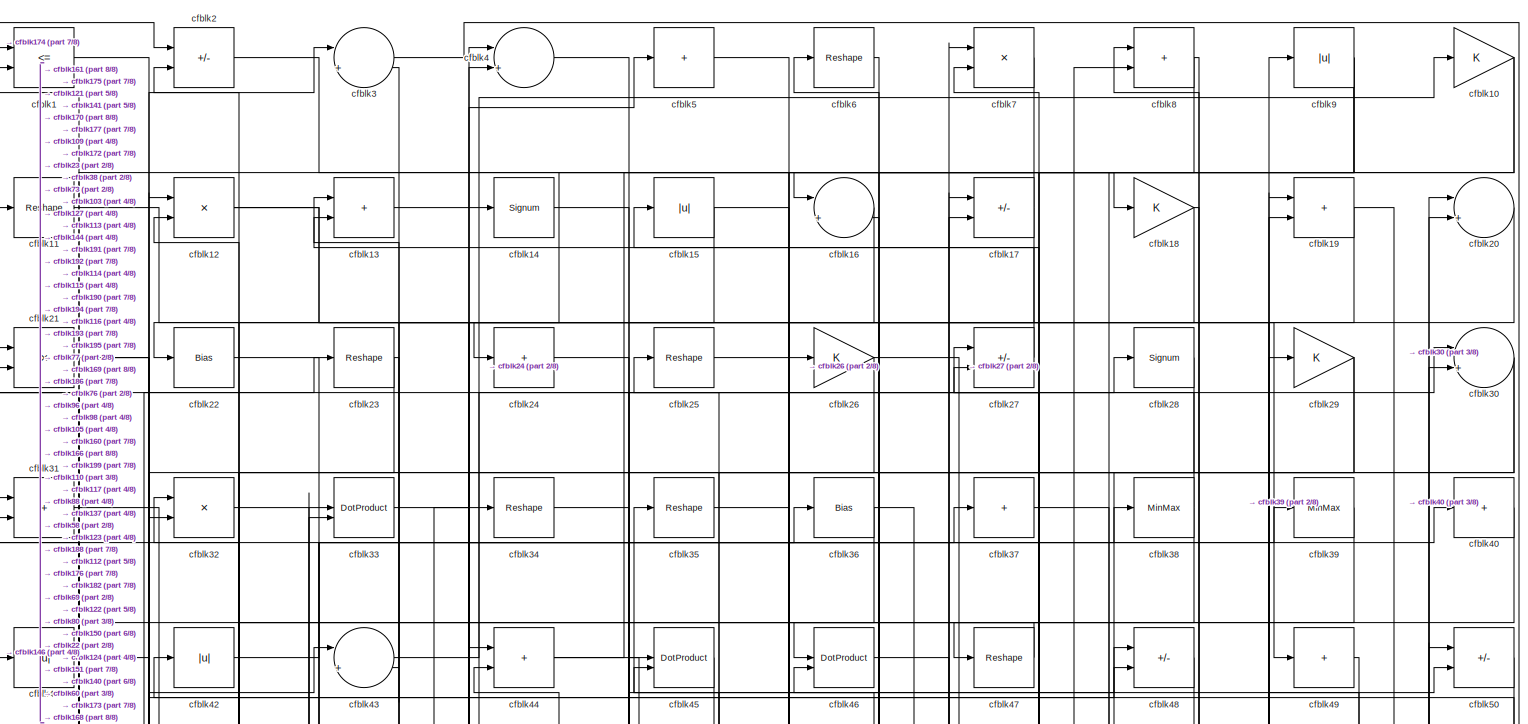
[diagram: root canvas - part 1/8, full width, top band]
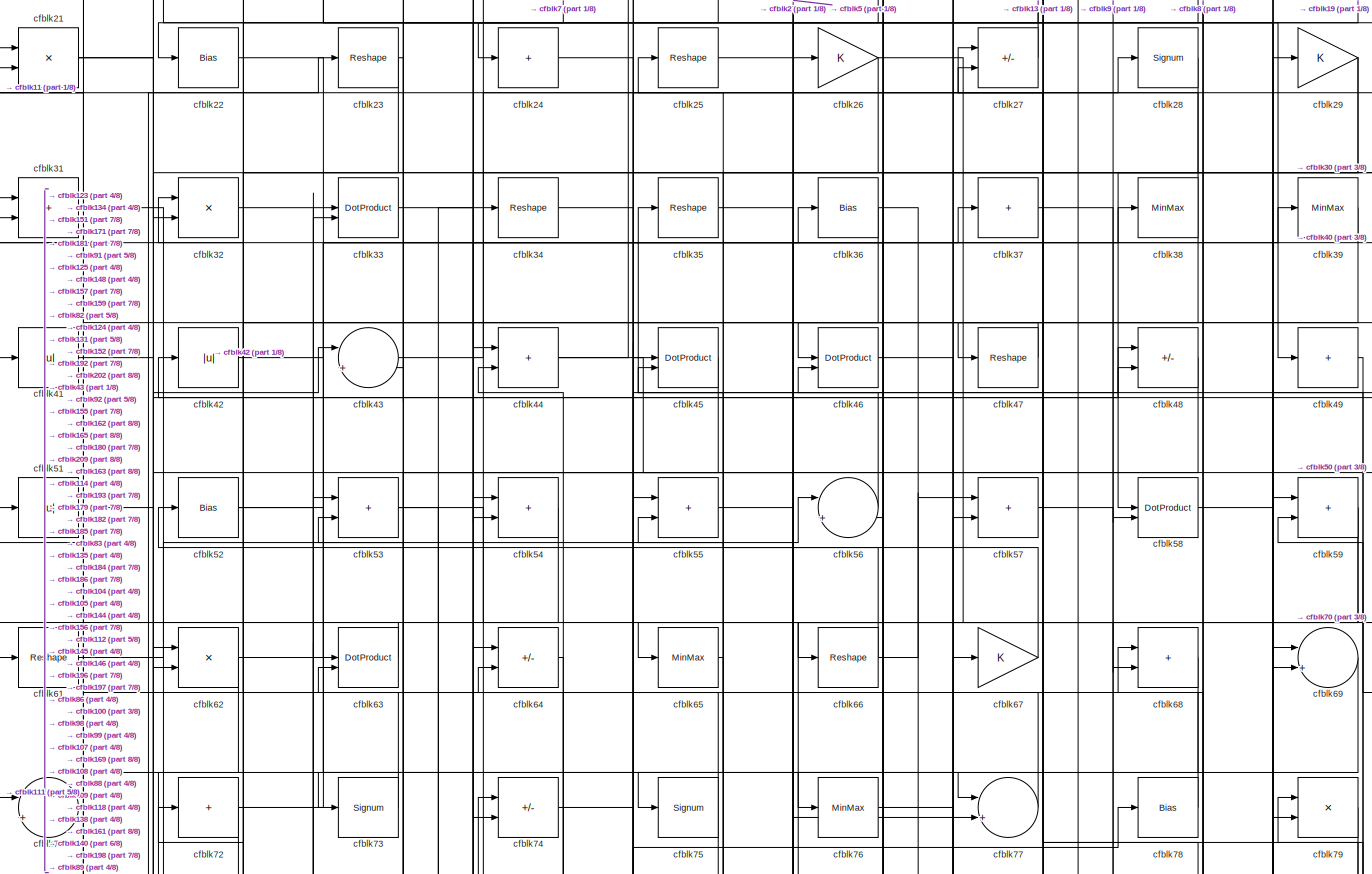
[diagram: root canvas - part 2/8, full width, top band]
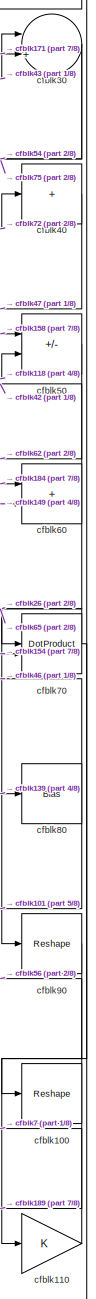
[diagram: root canvas - part 3/8, top right region]
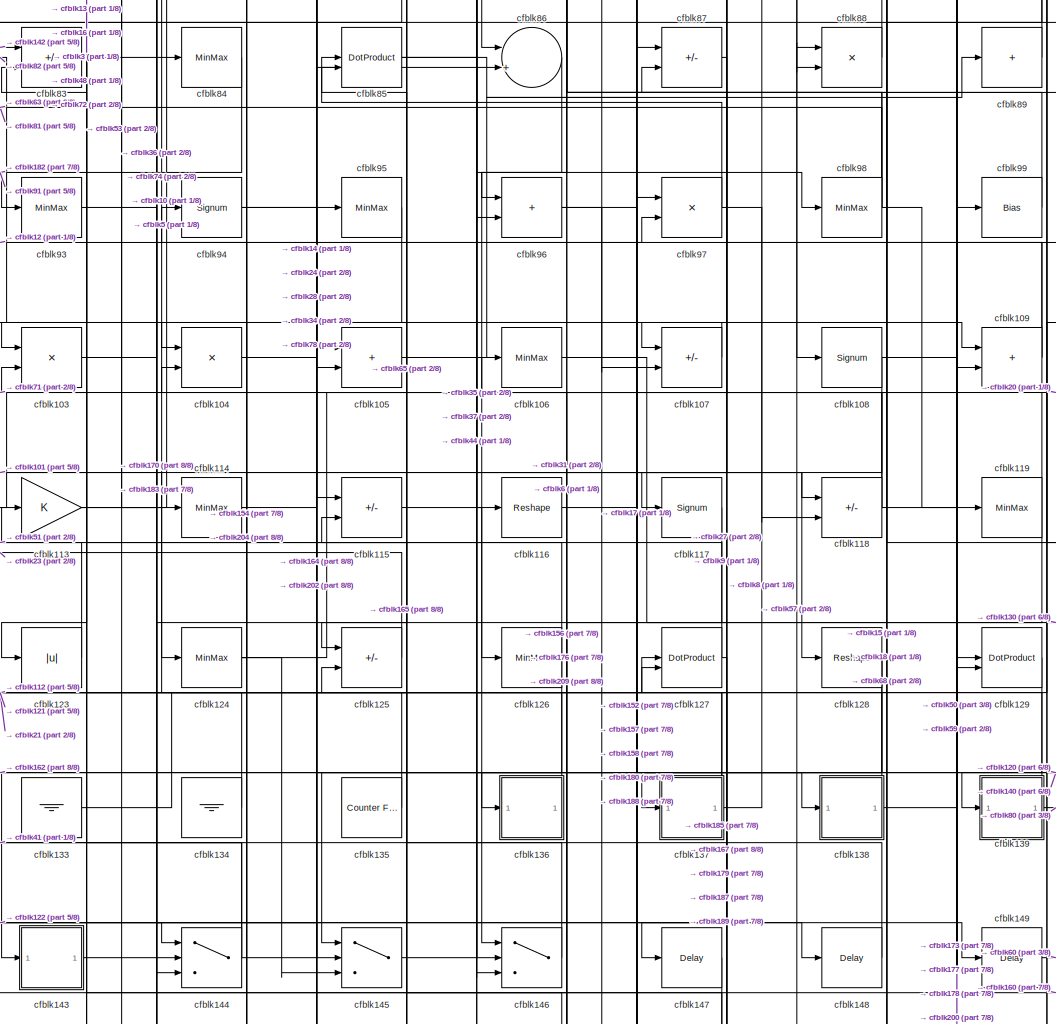
[diagram: root canvas - part 4/8, central region]
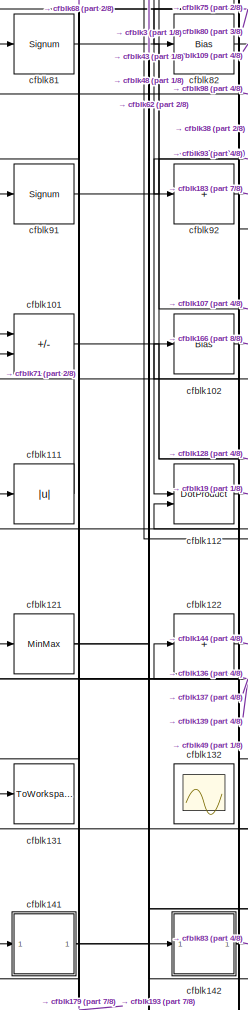
[diagram: root canvas - part 5/8, middle left region]
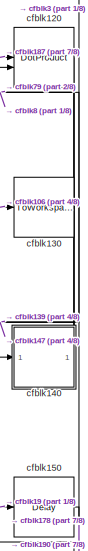
[diagram: root canvas - part 6/8, middle right region]
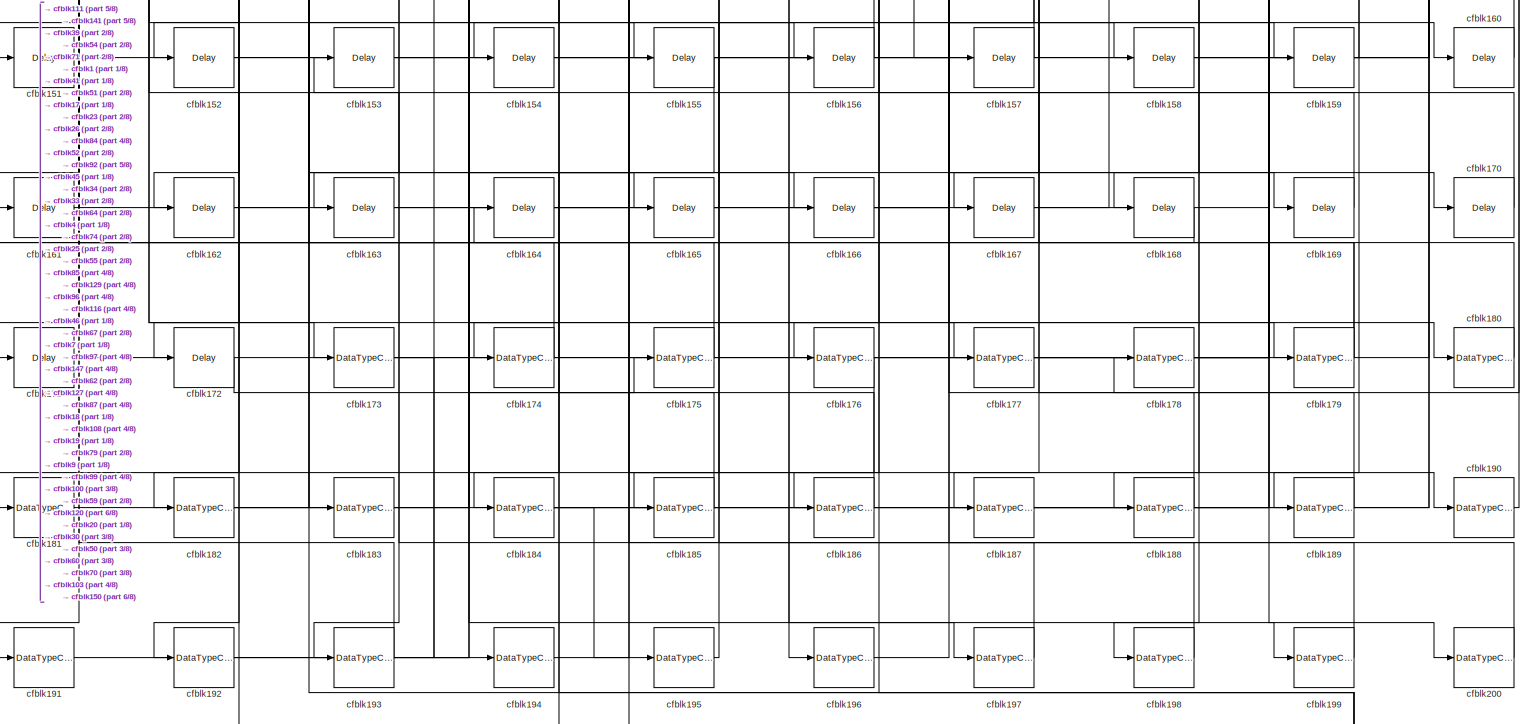
[diagram: root canvas - part 7/8, full width, bottom band]
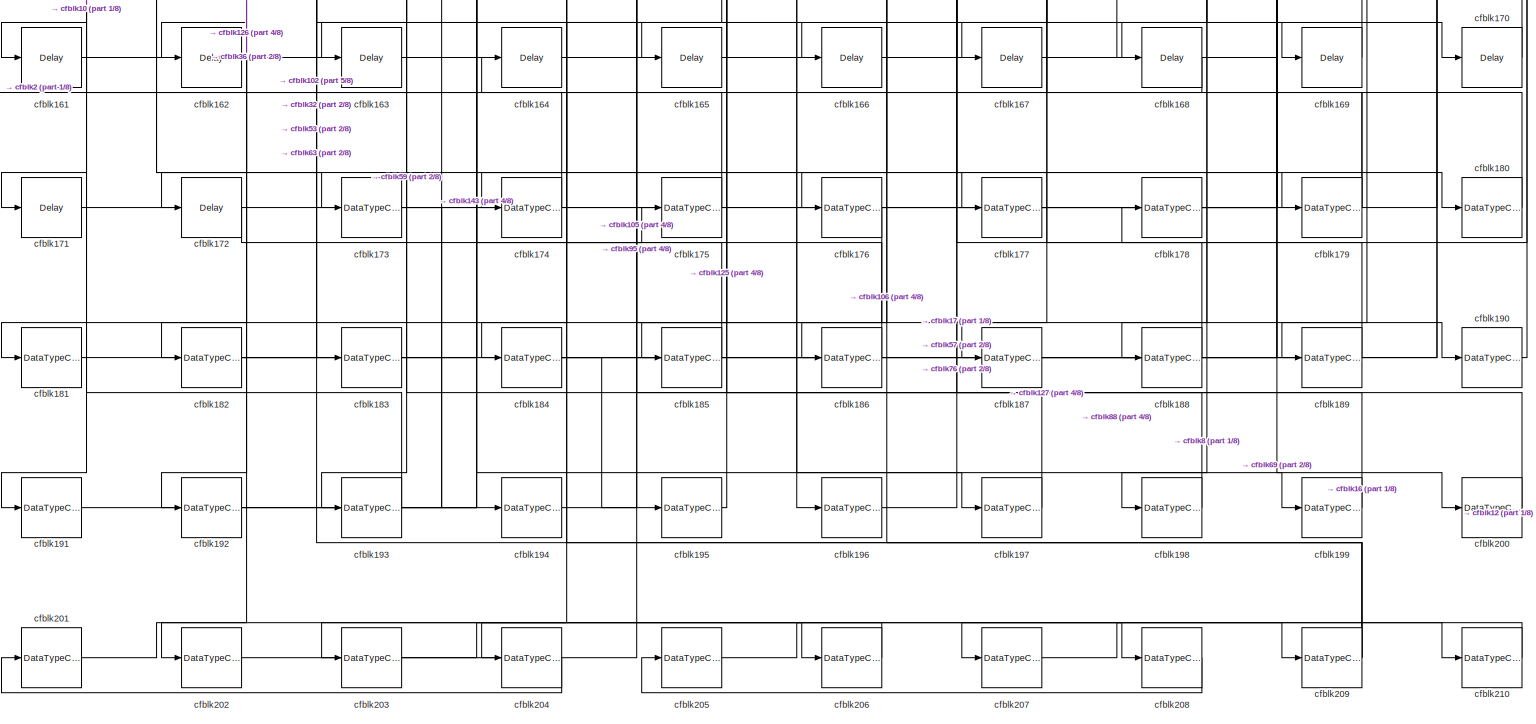
[diagram: root canvas - part 8/8, full width, bottom band]
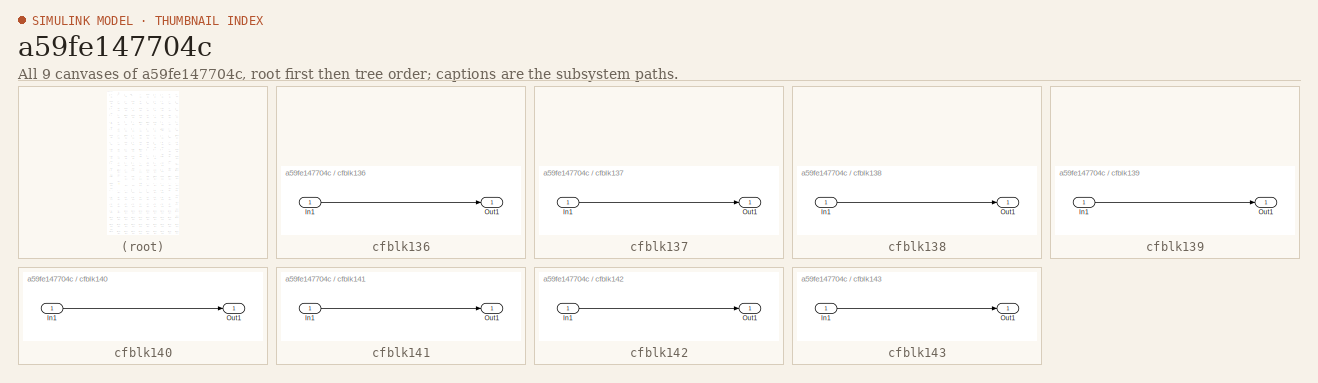
[diagram: thumbnail index - all 9 canvases of the model, root first then tree order]
MODEL slx_a59fe147704c
KIND model
CONFIG AbsTol = auto
CONFIG EnableMultiTasking = off
CONFIG FixedStep = auto
CONFIG MaxStep = auto
CONFIG MinStep = auto
CONFIG RelTol = 1e-3
CONFIG SampleTimeConstraint = Unconstrained
CONFIG SolverName = VariableStepAuto
CONFIG StartTime = 0.0
CONFIG StopTime = 10.0
BLOCK [RelationalOperator] cfblk1
  InputSameDT = off
  Operator = <=
  OutDataTypeStr = boolean
BLOCK [Gain] cfblk10
BLOCK [Reshape] cfblk100
BLOCK [Sum] cfblk101
  IconShape = rectangular
  Inputs = +-
BLOCK [Bias] cfblk102
  Bias = 0.0
  SaturateOnIntegerOverflow = off
BLOCK [Product] cfblk103
  Inputs = */
  RndMeth = Zero
  SaturateOnIntegerOverflow = on
BLOCK [Product] cfblk104
  Inputs = */
  RndMeth = Zero
  SaturateOnIntegerOverflow = on
BLOCK [Sum] cfblk105
  IconShape = rectangular
BLOCK [MinMax] cfblk106
BLOCK [Sum] cfblk107
  IconShape = rectangular
  Inputs = +-
BLOCK [Signum] cfblk108
BLOCK [Sum] cfblk109
  IconShape = rectangular
BLOCK [Reshape] cfblk11
BLOCK [Gain] cfblk110
BLOCK [Abs] cfblk111
  SaturateOnIntegerOverflow = off
BLOCK [DotProduct] cfblk112
  OutDataTypeStr = Inherit: Inherit via internal rule
BLOCK [Gain] cfblk113
BLOCK [MinMax] cfblk114
BLOCK [Sum] cfblk115
  IconShape = rectangular
  Inputs = +-
BLOCK [Reshape] cfblk116
BLOCK [Signum] cfblk117
BLOCK [Sum] cfblk118
  IconShape = rectangular
  Inputs = +-
BLOCK [MinMax] cfblk119
BLOCK [Product] cfblk12
  Inputs = */
  RndMeth = Zero
  SaturateOnIntegerOverflow = on
BLOCK [DotProduct] cfblk120
  OutDataTypeStr = Inherit: Inherit via internal rule
BLOCK [MinMax] cfblk121
BLOCK [Sum] cfblk122
  IconShape = rectangular
  Inputs = +
BLOCK [Abs] cfblk123
  SaturateOnIntegerOverflow = off
BLOCK [MinMax] cfblk124
BLOCK [Sum] cfblk125
  IconShape = rectangular
  Inputs = +-
BLOCK [MinMax] cfblk126
BLOCK [DotProduct] cfblk127
  OutDataTypeStr = Inherit: Inherit via internal rule
BLOCK [Reshape] cfblk128
BLOCK [DotProduct] cfblk129
  OutDataTypeStr = Inherit: Inherit via internal rule
BLOCK [Sum] cfblk13
  IconShape = rectangular
BLOCK [ToWorkspace] cfblk130
  MaxDataPoints = inf
  SampleTime = -1
  SaveFormat = Timeseries
  VariableName = simout
BLOCK [ToWorkspace] cfblk131
  MaxDataPoints = inf
  SampleTime = -1
  SaveFormat = Timeseries
  VariableName = simout
BLOCK [Scope] cfblk132
  Floating = on
  NumInputPorts = 1
  ScopeSpecificationString = Simulink.scopes.TimeScopeBlockCfg('CurrentConfiguration', extmgr.ConfigurationSet(extmgr.Configuration('Core','General UI',true,'FigureColor',[0.156862745098039 0.156862745098039 0.156862745098039]),extmgr.Configuration('Core','Source UI',true),extmgr.Configuration('Sources','WiredSimulink',true,'DataLoggingVariableName','ScopeData1','DataLoggingSaveFormat','StructureWithTime','DataLoggingLimitDat...<+2713ch>
BLOCK [Ground] cfblk133
BLOCK [Ground] cfblk134
BLOCK [Reference] cfblk135  REF=hdlsllib/Sources/Counter
Free-Running
  SourceBlock = hdlsllib/Sources/Counter\nFree-Running
  SourceType = Counter Free-Running
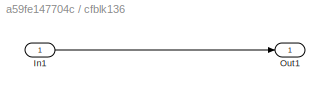
BLOCK [SubSystem] cfblk136
  LibrarySourceBlock = hdlsllib/Ports &\nSubsystems/Subsystem
BLOCK [Inport] cfblk136/In1
BLOCK [Outport] cfblk136/Out1
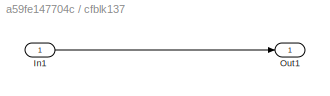
BLOCK [SubSystem] cfblk137
  LibrarySourceBlock = hdlsllib/Ports &\nSubsystems/Subsystem
BLOCK [Inport] cfblk137/In1
BLOCK [Outport] cfblk137/Out1
BLOCK [SubSystem] cfblk138
  LibrarySourceBlock = hdlsllib/Ports &\nSubsystems/Subsystem
BLOCK [Inport] cfblk138/In1
BLOCK [Outport] cfblk138/Out1
BLOCK [SubSystem] cfblk139
  LibrarySourceBlock = hdlsllib/Ports &\nSubsystems/Subsystem
BLOCK [Inport] cfblk139/In1
BLOCK [Outport] cfblk139/Out1
BLOCK [Signum] cfblk14
BLOCK [SubSystem] cfblk140
  LibrarySourceBlock = hdlsllib/Ports &\nSubsystems/Subsystem
BLOCK [Inport] cfblk140/In1
BLOCK [Outport] cfblk140/Out1
BLOCK [SubSystem] cfblk141
  LibrarySourceBlock = hdlsllib/Ports &\nSubsystems/Subsystem
BLOCK [Inport] cfblk141/In1
BLOCK [Outport] cfblk141/Out1
BLOCK [SubSystem] cfblk142
  LibrarySourceBlock = hdlsllib/Ports &\nSubsystems/Subsystem
BLOCK [Inport] cfblk142/In1
BLOCK [Outport] cfblk142/Out1
BLOCK [SubSystem] cfblk143
  LibrarySourceBlock = hdlsllib/Ports &\nSubsystems/Subsystem
BLOCK [Inport] cfblk143/In1
BLOCK [Outport] cfblk143/Out1
BLOCK [Switch] cfblk144
  InputSameDT = off
  SaturateOnIntegerOverflow = off
BLOCK [Switch] cfblk145
  InputSameDT = off
  SaturateOnIntegerOverflow = off
BLOCK [Switch] cfblk146
  InputSameDT = off
  SaturateOnIntegerOverflow = off
BLOCK [Delay] cfblk147
  InputPortMap = u0
  SampleTime = 1
BLOCK [Delay] cfblk148
  InputPortMap = u0
  SampleTime = 1
BLOCK [Delay] cfblk149
  InputPortMap = u0
  SampleTime = 1
BLOCK [Abs] cfblk15
  SaturateOnIntegerOverflow = off
BLOCK [Delay] cfblk150
  InputPortMap = u0
  SampleTime = 1
BLOCK [Delay] cfblk151
  InputPortMap = u0
  SampleTime = 1
BLOCK [Delay] cfblk152
  InputPortMap = u0
  SampleTime = 1
BLOCK [Delay] cfblk153
  InputPortMap = u0
  SampleTime = 1
BLOCK [Delay] cfblk154
  InputPortMap = u0
  SampleTime = 1
BLOCK [Delay] cfblk155
  InputPortMap = u0
  SampleTime = 1
BLOCK [Delay] cfblk156
  InputPortMap = u0
  SampleTime = 1
BLOCK [Delay] cfblk157
  InputPortMap = u0
  SampleTime = 1
BLOCK [Delay] cfblk158
  InputPortMap = u0
  SampleTime = 1
BLOCK [Delay] cfblk159
  InputPortMap = u0
  SampleTime = 1
BLOCK [Sum] cfblk16
  Inputs = |++
BLOCK [Delay] cfblk160
  InputPortMap = u0
  SampleTime = 1
BLOCK [Delay] cfblk161
  InputPortMap = u0
  SampleTime = 1
BLOCK [Delay] cfblk162
  InputPortMap = u0
  SampleTime = 1
BLOCK [Delay] cfblk163
  InputPortMap = u0
  SampleTime = 1
BLOCK [Delay] cfblk164
  InputPortMap = u0
  SampleTime = 1
BLOCK [Delay] cfblk165
  InputPortMap = u0
  SampleTime = 1
BLOCK [Delay] cfblk166
  InputPortMap = u0
  SampleTime = 1
BLOCK [Delay] cfblk167
  InputPortMap = u0
  SampleTime = 1
BLOCK [Delay] cfblk168
  InputPortMap = u0
  SampleTime = 1
BLOCK [Delay] cfblk169
  InputPortMap = u0
  SampleTime = 1
BLOCK [Sum] cfblk17
  IconShape = rectangular
  Inputs = +-
BLOCK [Delay] cfblk170
  InputPortMap = u0
  SampleTime = 1
BLOCK [Delay] cfblk171
  InputPortMap = u0
  SampleTime = 1
BLOCK [Delay] cfblk172
  InputPortMap = u0
  SampleTime = 1
BLOCK [DataTypeConversion] cfblk173
  RndMeth = Floor
  SaturateOnIntegerOverflow = off
BLOCK [DataTypeConversion] cfblk174
  OutDataTypeStr = uint8
  RndMeth = Floor
  SaturateOnIntegerOverflow = off
BLOCK [DataTypeConversion] cfblk175
  OutDataTypeStr = uint8
  RndMeth = Floor
  SaturateOnIntegerOverflow = off
BLOCK [DataTypeConversion] cfblk176
  RndMeth = Floor
  SaturateOnIntegerOverflow = off
BLOCK [DataTypeConversion] cfblk177
  OutDataTypeStr = uint8
  RndMeth = Floor
  SaturateOnIntegerOverflow = off
BLOCK [DataTypeConversion] cfblk178
  OutDataTypeStr = uint8
  RndMeth = Floor
  SaturateOnIntegerOverflow = off
BLOCK [DataTypeConversion] cfblk179
  RndMeth = Floor
  SaturateOnIntegerOverflow = off
BLOCK [Gain] cfblk18
BLOCK [DataTypeConversion] cfblk180
  OutDataTypeStr = uint8
  RndMeth = Floor
  SaturateOnIntegerOverflow = off
BLOCK [DataTypeConversion] cfblk181
  OutDataTypeStr = uint8
  RndMeth = Floor
  SaturateOnIntegerOverflow = off
BLOCK [DataTypeConversion] cfblk182
  RndMeth = Floor
  SaturateOnIntegerOverflow = off
BLOCK [DataTypeConversion] cfblk183
  OutDataTypeStr = uint8
  RndMeth = Floor
  SaturateOnIntegerOverflow = off
BLOCK [DataTypeConversion] cfblk184
  RndMeth = Floor
  SaturateOnIntegerOverflow = off
BLOCK [DataTypeConversion] cfblk185
  OutDataTypeStr = uint8
  RndMeth = Floor
  SaturateOnIntegerOverflow = off
BLOCK [DataTypeConversion] cfblk186
  OutDataTypeStr = uint8
  RndMeth = Floor
  SaturateOnIntegerOverflow = off
BLOCK [DataTypeConversion] cfblk187
  OutDataTypeStr = uint8
  RndMeth = Floor
  SaturateOnIntegerOverflow = off
BLOCK [DataTypeConversion] cfblk188
  OutDataTypeStr = uint8
  RndMeth = Floor
  SaturateOnIntegerOverflow = off
BLOCK [DataTypeConversion] cfblk189
  OutDataTypeStr = uint8
  RndMeth = Floor
  SaturateOnIntegerOverflow = off
BLOCK [Sum] cfblk19
  IconShape = rectangular
BLOCK [DataTypeConversion] cfblk190
  OutDataTypeStr = uint8
  RndMeth = Floor
  SaturateOnIntegerOverflow = off
BLOCK [DataTypeConversion] cfblk191
  OutDataTypeStr = uint8
  RndMeth = Floor
  SaturateOnIntegerOverflow = off
BLOCK [DataTypeConversion] cfblk192
  OutDataTypeStr = uint8
  RndMeth = Floor
  SaturateOnIntegerOverflow = off
BLOCK [DataTypeConversion] cfblk193
  RndMeth = Floor
  SaturateOnIntegerOverflow = off
BLOCK [DataTypeConversion] cfblk194
  OutDataTypeStr = uint8
  RndMeth = Floor
  SaturateOnIntegerOverflow = off
BLOCK [DataTypeConversion] cfblk195
  OutDataTypeStr = uint8
  RndMeth = Floor
  SaturateOnIntegerOverflow = off
BLOCK [DataTypeConversion] cfblk196
  OutDataTypeStr = uint8
  RndMeth = Floor
  SaturateOnIntegerOverflow = off
BLOCK [DataTypeConversion] cfblk197
  OutDataTypeStr = uint8
  RndMeth = Floor
  SaturateOnIntegerOverflow = off
BLOCK [DataTypeConversion] cfblk198
  OutDataTypeStr = uint8
  RndMeth = Floor
  SaturateOnIntegerOverflow = off
BLOCK [DataTypeConversion] cfblk199
  OutDataTypeStr = uint8
  RndMeth = Floor
  SaturateOnIntegerOverflow = off
BLOCK [Sum] cfblk2
  IconShape = rectangular
  Inputs = +-
BLOCK [Sum] cfblk20
  Inputs = |++
BLOCK [DataTypeConversion] cfblk200
  OutDataTypeStr = uint8
  RndMeth = Floor
  SaturateOnIntegerOverflow = off
BLOCK [DataTypeConversion] cfblk201
  RndMeth = Floor
  SaturateOnIntegerOverflow = off
BLOCK [DataTypeConversion] cfblk202
  OutDataTypeStr = uint8
  RndMeth = Floor
  SaturateOnIntegerOverflow = off
BLOCK [DataTypeConversion] cfblk203
  RndMeth = Floor
  SaturateOnIntegerOverflow = off
BLOCK [DataTypeConversion] cfblk204
  OutDataTypeStr = uint8
  RndMeth = Floor
  SaturateOnIntegerOverflow = off
BLOCK [DataTypeConversion] cfblk205
  RndMeth = Floor
  SaturateOnIntegerOverflow = off
BLOCK [DataTypeConversion] cfblk206
  OutDataTypeStr = uint8
  RndMeth = Floor
  SaturateOnIntegerOverflow = off
BLOCK [DataTypeConversion] cfblk207
  RndMeth = Floor
  SaturateOnIntegerOverflow = off
BLOCK [DataTypeConversion] cfblk208
  OutDataTypeStr = uint8
  RndMeth = Floor
  SaturateOnIntegerOverflow = off
BLOCK [DataTypeConversion] cfblk209
  RndMeth = Floor
  SaturateOnIntegerOverflow = off
BLOCK [Product] cfblk21
  Inputs = */
  RndMeth = Zero
  SaturateOnIntegerOverflow = on
BLOCK [DataTypeConversion] cfblk210
  OutDataTypeStr = uint8
  RndMeth = Floor
  SaturateOnIntegerOverflow = off
BLOCK [Bias] cfblk22
  Bias = 0.0
  SaturateOnIntegerOverflow = off
BLOCK [Reshape] cfblk23
BLOCK [Sum] cfblk24
  IconShape = rectangular
  Inputs = +
BLOCK [Reshape] cfblk25
BLOCK [Gain] cfblk26
BLOCK [Sum] cfblk27
  IconShape = rectangular
  Inputs = +-
BLOCK [Signum] cfblk28
BLOCK [Gain] cfblk29
BLOCK [Sum] cfblk3
  Inputs = |++
BLOCK [Sum] cfblk30
  Inputs = |++
BLOCK [Sum] cfblk31
  IconShape = rectangular
BLOCK [Product] cfblk32
  Inputs = */
  RndMeth = Zero
  SaturateOnIntegerOverflow = on
BLOCK [DotProduct] cfblk33
  OutDataTypeStr = Inherit: Inherit via internal rule
BLOCK [Reshape] cfblk34
BLOCK [Reshape] cfblk35
BLOCK [Bias] cfblk36
  Bias = 0.0
  SaturateOnIntegerOverflow = off
BLOCK [Sum] cfblk37
  IconShape = rectangular
  Inputs = +
BLOCK [MinMax] cfblk38
BLOCK [MinMax] cfblk39
BLOCK [Sum] cfblk4
  Inputs = |++
BLOCK [Sum] cfblk40
  IconShape = rectangular
  Inputs = +
BLOCK [Abs] cfblk41
  SaturateOnIntegerOverflow = off
BLOCK [Abs] cfblk42
  SaturateOnIntegerOverflow = off
BLOCK [Sum] cfblk43
  Inputs = |++
BLOCK [Sum] cfblk44
  IconShape = rectangular
BLOCK [DotProduct] cfblk45
  OutDataTypeStr = Inherit: Inherit via internal rule
BLOCK [DotProduct] cfblk46
  OutDataTypeStr = Inherit: Inherit via internal rule
BLOCK [Reshape] cfblk47
BLOCK [Sum] cfblk48
  IconShape = rectangular
  Inputs = +-
BLOCK [Sum] cfblk49
  IconShape = rectangular
  Inputs = +
BLOCK [Sum] cfblk5
  IconShape = rectangular
  Inputs = +
BLOCK [Sum] cfblk50
  IconShape = rectangular
  Inputs = +-
BLOCK [Abs] cfblk51
  SaturateOnIntegerOverflow = off
BLOCK [Bias] cfblk52
  Bias = 0.0
  SaturateOnIntegerOverflow = off
BLOCK [Sum] cfblk53
  IconShape = rectangular
BLOCK [Sum] cfblk54
  IconShape = rectangular
BLOCK [Sum] cfblk55
  IconShape = rectangular
BLOCK [Sum] cfblk56
  Inputs = |++
BLOCK [Sum] cfblk57
  IconShape = rectangular
BLOCK [DotProduct] cfblk58
  OutDataTypeStr = Inherit: Inherit via internal rule
BLOCK [Sum] cfblk59
  IconShape = rectangular
BLOCK [Reshape] cfblk6
BLOCK [Sum] cfblk60
  IconShape = rectangular
BLOCK [Reshape] cfblk61
BLOCK [Product] cfblk62
  Inputs = */
  RndMeth = Zero
  SaturateOnIntegerOverflow = on
BLOCK [DotProduct] cfblk63
  OutDataTypeStr = Inherit: Inherit via internal rule
BLOCK [Sum] cfblk64
  IconShape = rectangular
  Inputs = +-
BLOCK [MinMax] cfblk65
BLOCK [Reshape] cfblk66
BLOCK [Gain] cfblk67
BLOCK [Sum] cfblk68
  IconShape = rectangular
BLOCK [Sum] cfblk69
  Inputs = |++
BLOCK [Product] cfblk7
  Inputs = */
  RndMeth = Zero
  SaturateOnIntegerOverflow = on
BLOCK [DotProduct] cfblk70
  OutDataTypeStr = Inherit: Inherit via internal rule
BLOCK [Sum] cfblk71
  Inputs = |++
BLOCK [Sum] cfblk72
  IconShape = rectangular
  Inputs = +
BLOCK [Signum] cfblk73
BLOCK [Sum] cfblk74
  IconShape = rectangular
  Inputs = +-
BLOCK [Signum] cfblk75
BLOCK [MinMax] cfblk76
BLOCK [Sum] cfblk77
  Inputs = |++
BLOCK [Bias] cfblk78
  Bias = 0.0
  SaturateOnIntegerOverflow = off
BLOCK [Product] cfblk79
  Inputs = */
  RndMeth = Zero
  SaturateOnIntegerOverflow = on
BLOCK [Sum] cfblk8
  IconShape = rectangular
BLOCK [Bias] cfblk80
  Bias = 0.0
  SaturateOnIntegerOverflow = off
BLOCK [Signum] cfblk81
BLOCK [Bias] cfblk82
  Bias = 0.0
  SaturateOnIntegerOverflow = off
BLOCK [Sum] cfblk83
  IconShape = rectangular
  Inputs = +-
BLOCK [MinMax] cfblk84
BLOCK [DotProduct] cfblk85
  OutDataTypeStr = Inherit: Inherit via internal rule
BLOCK [Sum] cfblk86
  Inputs = |++
BLOCK [Sum] cfblk87
  IconShape = rectangular
  Inputs = +-
BLOCK [Product] cfblk88
  Inputs = */
  RndMeth = Zero
  SaturateOnIntegerOverflow = on
BLOCK [Sum] cfblk89
  IconShape = rectangular
  Inputs = +
BLOCK [Abs] cfblk9
  SaturateOnIntegerOverflow = off
BLOCK [Reshape] cfblk90
BLOCK [Signum] cfblk91
BLOCK [Sum] cfblk92
  IconShape = rectangular
  Inputs = +
BLOCK [MinMax] cfblk93
BLOCK [Signum] cfblk94
BLOCK [MinMax] cfblk95
BLOCK [Sum] cfblk96
  IconShape = rectangular
BLOCK [Product] cfblk97
  Inputs = */
  RndMeth = Zero
  SaturateOnIntegerOverflow = on
BLOCK [MinMax] cfblk98
BLOCK [Bias] cfblk99
  Bias = 0.0
  SaturateOnIntegerOverflow = off
NET cfblk100:1 -> cfblk189:1, cfblk56:2
LINE cfblk101:1 -> cfblk128:1
LINE cfblk102:1 -> cfblk166:1
LINE cfblk103:1 -> cfblk97:2
LINE cfblk104:1 -> cfblk78:1
LINE cfblk105:1 -> cfblk17:2
LINE cfblk106:1 -> cfblk130:1
LINE cfblk107:1 -> cfblk104:1
NET cfblk108:1 -> cfblk154:1, cfblk200:1
NET cfblk109:1 -> cfblk12:2, cfblk68:1
NET cfblk10:1 -> cfblk117:1, cfblk161:1
LINE cfblk110:1 -> cfblk7:2
LINE cfblk111:1 -> cfblk71:1
LINE cfblk112:1 -> cfblk19:1
NET cfblk113:1 -> cfblk10:1, cfblk5:1
NET cfblk114:1 -> cfblk28:1, cfblk44:2
LINE cfblk115:1 -> cfblk146:1
LINE cfblk116:1 -> cfblk180:1
LINE cfblk117:1 -> cfblk144:2
NET cfblk118:1 -> cfblk27:2, cfblk50:2, cfblk71:2
NET cfblk119:1 -> cfblk136:1, cfblk94:1
LINE cfblk11:1 -> cfblk69:1
LINE cfblk120:1 -> cfblk147:1
NET cfblk121:1 -> cfblk3:1, cfblk43:1
LINE cfblk122:1 -> cfblk144:1
LINE cfblk123:1 -> cfblk51:1
NET cfblk124:1 -> cfblk104:2, cfblk145:3, cfblk20:1
LINE cfblk125:1 -> cfblk23:1
NET cfblk126:1 -> cfblk113:1, cfblk162:1
NET cfblk127:1 -> cfblk167:1, cfblk3:2
NET cfblk128:1 -> cfblk143:1, cfblk145:1
LINE cfblk129:1 -> cfblk176:1
NET cfblk12:1 -> cfblk44:1, cfblk49:1
LINE cfblk133:1 -> cfblk127:1
LINE cfblk134:1 -> cfblk31:2
LINE cfblk135:1 -> cfblk74:1
LINE cfblk136/In1:1 -> cfblk136/Out1:1
LINE cfblk136:1 -> cfblk101:1
LINE cfblk137/In1:1 -> cfblk137/Out1:1
NET cfblk137:1 -> cfblk121:1, cfblk83:2, cfblk8:2
LINE cfblk138/In1:1 -> cfblk138/Out1:1
NET cfblk138:1 -> cfblk21:2, cfblk59:1
LINE cfblk139/In1:1 -> cfblk139/Out1:1
NET cfblk139:1 -> cfblk112:2, cfblk80:1
LINE cfblk13:1 -> cfblk14:1
LINE cfblk140/In1:1 -> cfblk140/Out1:1
NET cfblk140:1 -> cfblk139:1, cfblk79:1, cfblk8:1
LINE cfblk141/In1:1 -> cfblk141/Out1:1
NET cfblk141:1 -> cfblk142:1, cfblk48:2
LINE cfblk142/In1:1 -> cfblk142/Out1:1
NET cfblk142:1 -> cfblk102:1, cfblk83:1
LINE cfblk143/In1:1 -> cfblk143/Out1:1
LINE cfblk143:1 -> cfblk170:1
NET cfblk144:1 -> cfblk13:2, cfblk48:1, cfblk72:1
LINE cfblk145:1 -> cfblk37:1
LINE cfblk146:1 -> cfblk41:1
LINE cfblk147:1 -> cfblk185:1
LINE cfblk148:1 -> cfblk115:2
LINE cfblk149:1 -> cfblk60:2
LINE cfblk14:1 -> cfblk115:1
LINE cfblk150:1 -> cfblk178:1
LINE cfblk151:1 -> cfblk20:2
LINE cfblk152:1 -> cfblk97:1
LINE cfblk153:1 -> cfblk199:1
LINE cfblk154:1 -> cfblk70:2
LINE cfblk155:1 -> cfblk174:1
LINE cfblk156:1 -> cfblk85:2
LINE cfblk157:1 -> cfblk62:1
LINE cfblk158:1 -> cfblk50:1
LINE cfblk159:1 -> cfblk59:2
NET cfblk15:1 -> cfblk144:3, cfblk98:1
LINE cfblk160:1 -> cfblk103:2
LINE cfblk161:1 -> cfblk69:2
LINE cfblk162:1 -> cfblk53:1
LINE cfblk163:1 -> cfblk57:2
LINE cfblk164:1 -> cfblk105:1
LINE cfblk165:1 -> cfblk125:2
LINE cfblk166:1 -> cfblk17:1
LINE cfblk167:1 -> cfblk88:1
LINE cfblk168:1 -> cfblk2:1
LINE cfblk169:1 -> cfblk16:2
LINE cfblk16:1 -> cfblk103:1
LINE cfblk170:1 -> cfblk12:1
LINE cfblk171:1 -> cfblk30:2
LINE cfblk172:1 -> cfblk175:1
NET cfblk173:1 -> cfblk194:1, cfblk99:1
LINE cfblk174:1 -> cfblk1:1
LINE cfblk175:1 -> cfblk1:2
NET cfblk176:1 -> cfblk191:1, cfblk19:2
LINE cfblk177:1 -> cfblk129:1
LINE cfblk178:1 -> cfblk129:2
NET cfblk179:1 -> cfblk127:2, cfblk141:1
NET cfblk17:1 -> cfblk16:1, cfblk172:1
LINE cfblk180:1 -> cfblk33:1
LINE cfblk181:1 -> cfblk33:2
NET cfblk182:1 -> cfblk54:1, cfblk9:1
LINE cfblk183:1 -> cfblk84:1
NET cfblk184:1 -> cfblk195:1, cfblk60:1, cfblk79:2
LINE cfblk185:1 -> cfblk64:1
LINE cfblk186:1 -> cfblk64:2
LINE cfblk187:1 -> cfblk120:1
LINE cfblk188:1 -> cfblk87:1
LINE cfblk189:1 -> cfblk87:2
NET cfblk18:1 -> cfblk188:1, cfblk96:2
LINE cfblk190:1 -> cfblk120:2
LINE cfblk191:1 -> cfblk4:1
LINE cfblk192:1 -> cfblk4:2
NET cfblk193:1 -> cfblk111:1, cfblk34:1
LINE cfblk194:1 -> cfblk45:1
LINE cfblk195:1 -> cfblk45:2
LINE cfblk196:1 -> cfblk67:1
LINE cfblk197:1 -> cfblk55:1
LINE cfblk198:1 -> cfblk55:2
LINE cfblk199:1 -> cfblk7:1
NET cfblk19:1 -> cfblk150:1, cfblk22:1
LINE cfblk1:1 -> cfblk173:1
LINE cfblk200:1 -> cfblk153:1
LINE cfblk201:1 -> cfblk206:1
LINE cfblk202:1 -> cfblk95:1
LINE cfblk203:1 -> cfblk208:1
LINE cfblk204:1 -> cfblk201:1
LINE cfblk205:1 -> cfblk210:1
LINE cfblk206:1 -> cfblk203:1
LINE cfblk207:1 -> cfblk209:1
LINE cfblk208:1 -> cfblk205:1
NET cfblk209:1 -> cfblk106:1, cfblk164:1, cfblk63:1
LINE cfblk20:1 -> cfblk186:1
LINE cfblk210:1 -> cfblk207:1
NET cfblk21:1 -> cfblk145:2, cfblk148:1
LINE cfblk22:1 -> cfblk77:1
NET cfblk23:1 -> cfblk152:1, cfblk43:2
LINE cfblk24:1 -> cfblk105:2
LINE cfblk25:1 -> cfblk197:1
NET cfblk26:1 -> cfblk192:1, cfblk70:1
LINE cfblk27:1 -> cfblk13:1
LINE cfblk28:1 -> cfblk58:1
NET cfblk29:1 -> cfblk32:2, cfblk66:1
LINE cfblk2:1 -> cfblk26:1
NET cfblk30:1 -> cfblk54:2, cfblk75:1
LINE cfblk31:1 -> cfblk124:1
LINE cfblk32:1 -> cfblk165:1
LINE cfblk33:1 -> cfblk179:1
LINE cfblk34:1 -> cfblk86:2
LINE cfblk35:1 -> cfblk146:2
NET cfblk36:1 -> cfblk107:2, cfblk202:1
LINE cfblk37:1 -> cfblk68:2
NET cfblk38:1 -> cfblk11:1, cfblk92:1
LINE cfblk39:1 -> cfblk181:1
LINE cfblk3:1 -> cfblk140:1
LINE cfblk40:1 -> cfblk47:1
LINE cfblk41:1 -> cfblk177:1
LINE cfblk42:1 -> cfblk39:1
LINE cfblk43:1 -> cfblk30:1
NET cfblk44:1 -> cfblk116:1, cfblk18:1
LINE cfblk45:1 -> cfblk193:1
LINE cfblk46:1 -> cfblk160:1
LINE cfblk47:1 -> cfblk46:1
LINE cfblk48:1 -> cfblk123:1
LINE cfblk49:1 -> cfblk122:1
LINE cfblk4:1 -> cfblk190:1
LINE cfblk50:1 -> cfblk62:2
LINE cfblk51:1 -> cfblk159:1
NET cfblk52:1 -> cfblk155:1, cfblk74:2
NET cfblk53:1 -> cfblk108:1, cfblk114:1
LINE cfblk54:1 -> cfblk171:1
LINE cfblk55:1 -> cfblk196:1
LINE cfblk56:1 -> cfblk35:1
LINE cfblk57:1 -> cfblk88:2
LINE cfblk58:1 -> cfblk29:1
NET cfblk59:1 -> cfblk163:1, cfblk86:1
LINE cfblk5:1 -> cfblk77:2
NET cfblk60:1 -> cfblk42:1, cfblk90:1
LINE cfblk61:1 -> cfblk56:1
NET cfblk62:1 -> cfblk38:1, cfblk82:1
LINE cfblk63:1 -> cfblk61:1
LINE cfblk64:1 -> cfblk184:1
LINE cfblk65:1 -> cfblk125:1
NET cfblk66:1 -> cfblk25:1, cfblk57:1
LINE cfblk67:1 -> cfblk52:1
LINE cfblk68:1 -> cfblk91:1
LINE cfblk69:1 -> cfblk73:1
LINE cfblk6:1 -> cfblk96:1
NET cfblk70:1 -> cfblk100:1, cfblk65:1
LINE cfblk71:1 -> cfblk151:1
NET cfblk72:1 -> cfblk131:1, cfblk40:1
LINE cfblk73:1 -> cfblk2:2
LINE cfblk74:1 -> cfblk156:1
NET cfblk75:1 -> cfblk112:1, cfblk53:2
LINE cfblk76:1 -> cfblk169:1
LINE cfblk77:1 -> cfblk21:1
LINE cfblk78:1 -> cfblk32:1
LINE cfblk79:1 -> cfblk198:1
LINE cfblk7:1 -> cfblk24:1
NET cfblk80:1 -> cfblk101:2, cfblk46:2
LINE cfblk81:1 -> cfblk107:1
LINE cfblk82:1 -> cfblk109:1
LINE cfblk83:1 -> cfblk36:1
LINE cfblk84:1 -> cfblk182:1
NET cfblk85:1 -> cfblk118:1, cfblk89:1
LINE cfblk86:1 -> cfblk126:1
LINE cfblk87:1 -> cfblk187:1
LINE cfblk88:1 -> cfblk15:1
LINE cfblk89:1 -> cfblk27:1
NET cfblk8:1 -> cfblk168:1, cfblk76:1
LINE cfblk90:1 -> cfblk110:1
LINE cfblk91:1 -> cfblk93:1
LINE cfblk92:1 -> cfblk183:1
LINE cfblk93:1 -> cfblk149:1
NET cfblk94:1 -> cfblk109:2, cfblk138:1
LINE cfblk95:1 -> cfblk204:1
NET cfblk96:1 -> cfblk157:1, cfblk158:1
NET cfblk97:1 -> cfblk118:2, cfblk85:1
NET cfblk98:1 -> cfblk119:1, cfblk63:2, cfblk6:1, cfblk81:1
LINE cfblk99:1 -> cfblk31:1
NET cfblk9:1 -> cfblk137:1, cfblk146:3, cfblk58:2
note: NET lines group one-source signal fan-out (src -> all destinations, sorted); 1:1 wires keep LINE
